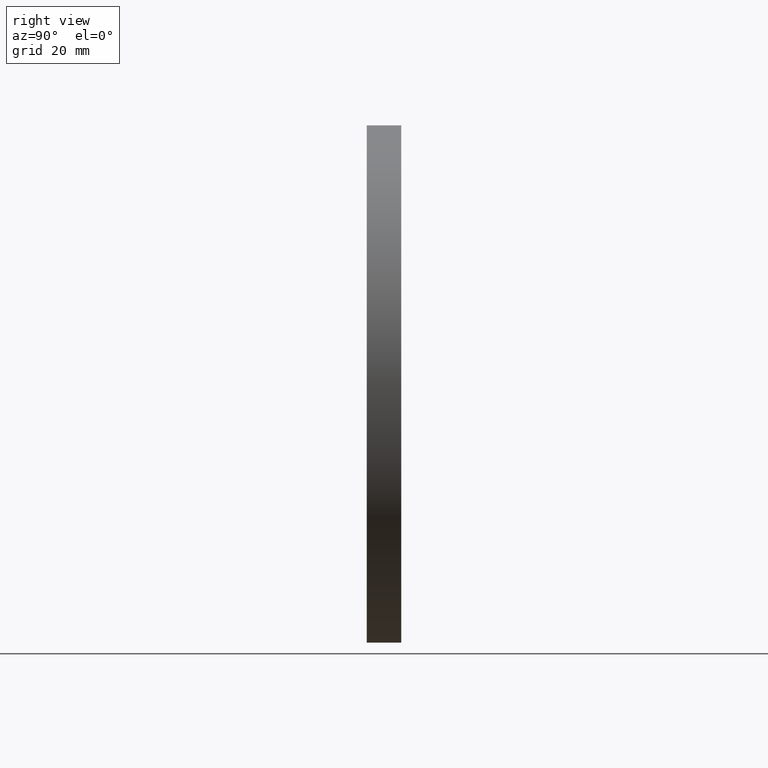
[diagram: clean part render]
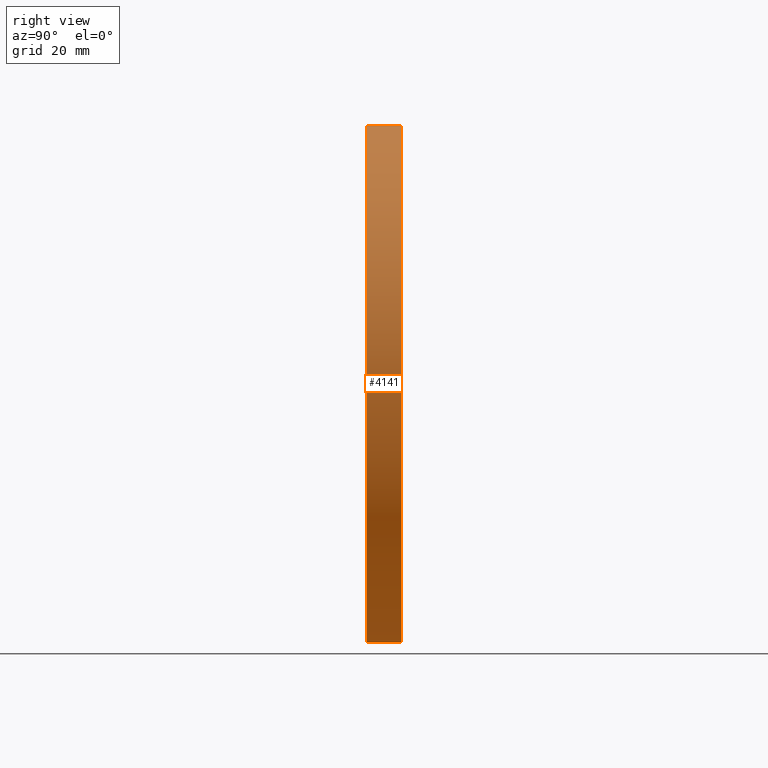
[diagram: same view with one face highlighted and labeled with its STEP entity id]
A machine part, right view. The second image highlights one B-rep face of the part: STEP entity #4141.
In plain terms, the highlighted cylindrical surface (bore or boss wall) has radius 75 mm, axis along (-0, -1, -0).
Its self-contained STEP definition (entity closure, byte-faithful):
#1214 = CARTESIAN_POINT ( 'NONE',  ( 0.000000000000000000, 5.000000000000000000, 0.000000000000000000 ) ) ;
#1571 = CARTESIAN_POINT ( 'NONE',  ( 0.000000000000000000, -5.000000000000000000, 0.000000000000000000 ) ) ;
#2118 = AXIS2_PLACEMENT_3D ( 'NONE', #1571, #11555, #11643 ) ;
#2192 = CIRCLE ( 'NONE', #8201, 75.00000000000001421 ) ;
#2747 = ORIENTED_EDGE ( 'NONE', *, *, #8215, .T. ) ;
#2796 = CARTESIAN_POINT ( 'NONE',  ( 0.000000000000000000, 5.000000000000000000, 0.000000000000000000 ) ) ;
#3413 = CARTESIAN_POINT ( 'NONE',  ( 0.000000000000000000, -5.000000000000000000, 75.00000000000001421 ) ) ;
#3614 = CYLINDRICAL_SURFACE ( 'NONE', #8718, 75.00000000000001421 ) ;
#3783 = DIRECTION ( 'NONE',  ( 0.000000000000000000, 1.000000000000000000, 0.000000000000000000 ) ) ;
#4141 = ADVANCED_FACE ( 'NONE', ( #8026, #10737 ), #3614, .T. ) ;
#4776 = CIRCLE ( 'NONE', #2118, 75.00000000000001421 ) ;
#6424 = ORIENTED_EDGE ( 'NONE', *, *, #13330, .F. ) ;
#6599 = DIRECTION ( 'NONE',  ( 0.000000000000000000, 0.000000000000000000, -1.000000000000000000 ) ) ;
#7732 = CARTESIAN_POINT ( 'NONE',  ( 0.000000000000000000, 5.000000000000000000, 75.00000000000001421 ) ) ;
#8026 = FACE_OUTER_BOUND ( 'NONE', #13095, .T. ) ;
#8201 = AXIS2_PLACEMENT_3D ( 'NONE', #2796, #3783, #11351 ) ;
#8215 = EDGE_CURVE ( 'NONE', #9434, #9434, #4776, .T. ) ;
#8261 = VERTEX_POINT ( 'NONE', #7732 ) ;
#8718 = AXIS2_PLACEMENT_3D ( 'NONE', #1214, #12010, #6599 ) ;
#9434 = VERTEX_POINT ( 'NONE', #3413 ) ;
#10737 = FACE_OUTER_BOUND ( 'NONE', #13565, .T. ) ;
#11351 = DIRECTION ( 'NONE',  ( 0.000000000000000000, 0.000000000000000000, 1.000000000000000000 ) ) ;
#11555 = DIRECTION ( 'NONE',  ( 0.000000000000000000, 1.000000000000000000, 0.000000000000000000 ) ) ;
#11643 = DIRECTION ( 'NONE',  ( 0.000000000000000000, 0.000000000000000000, 1.000000000000000000 ) ) ;
#12010 = DIRECTION ( 'NONE',  ( -0.000000000000000000, -1.000000000000000000, -0.000000000000000000 ) ) ;
#13095 = EDGE_LOOP ( 'NONE', ( #6424 ) ) ;
#13330 = EDGE_CURVE ( 'NONE', #8261, #8261, #2192, .T. ) ;
#13565 = EDGE_LOOP ( 'NONE', ( #2747 ) ) ;